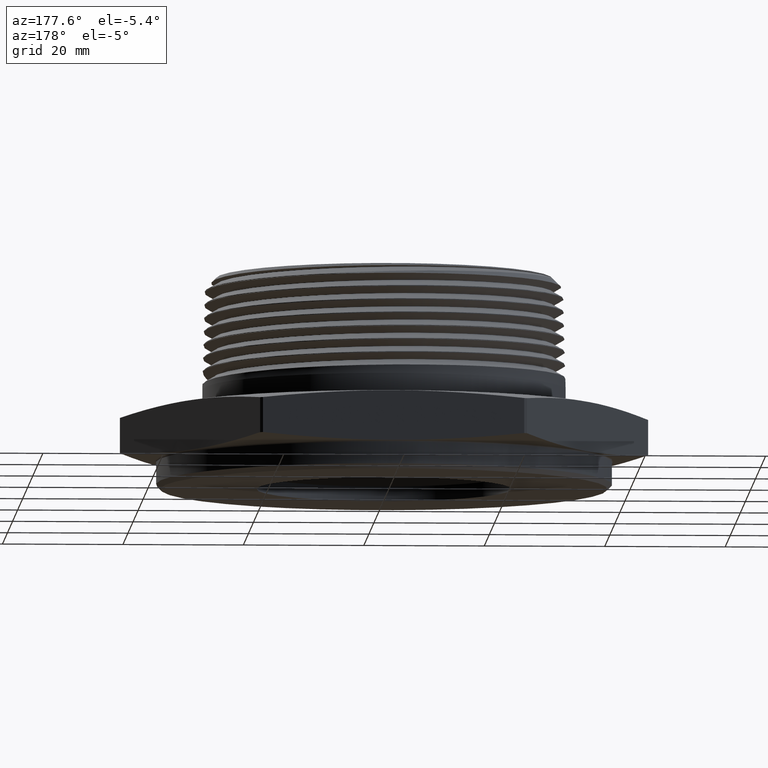
[diagram: clean part render]
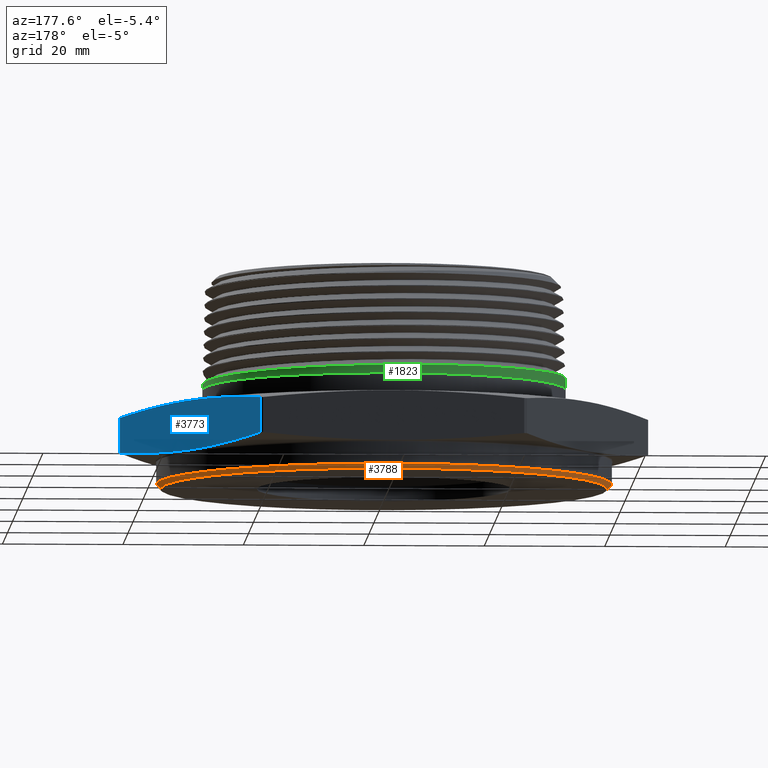
[diagram: same view with three faces highlighted in distinct colors, each labeled with its STEP entity id]
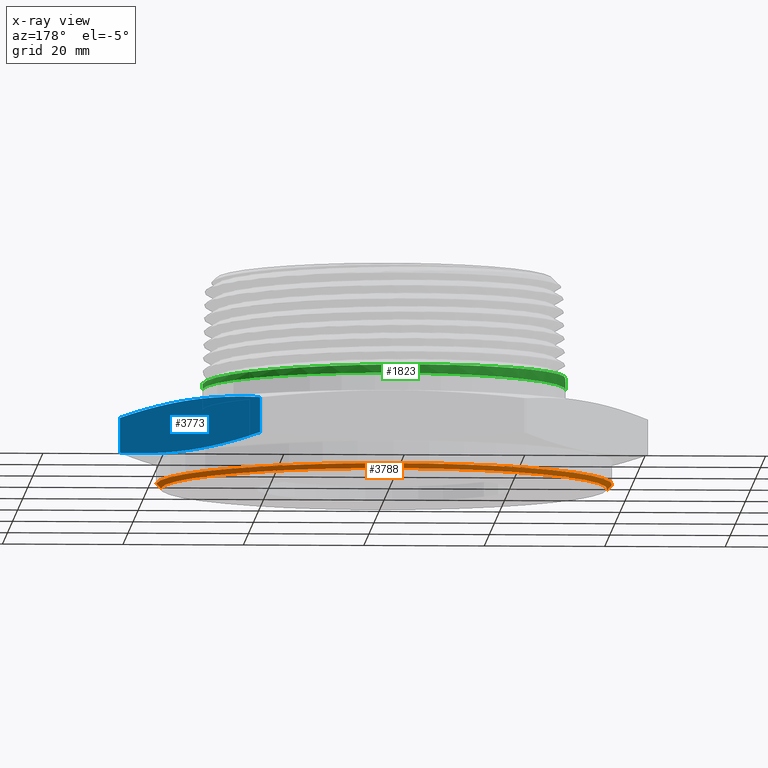
[diagram: x-ray of the same camera — body ghosted, the three highlighted faces saturated]
A machine part, auxiliary view with three faces highlighted in distinct colors.
The next image is the same camera in x-ray (body ghosted, the three faces saturated) — at least one of them is partly hidden behind the body in this view.
Their STEP definitions:

[orange] entity #3788 — the highlighted conical surface has half-angle 45 deg.
#1340 = EDGE_CURVE ( 'NONE', #1610, #1628, #1733, .T. ) ;
#1341 = EDGE_CURVE ( 'NONE', #1628, #1611, #1734, .T. ) ;
#1354 = AXIS2_PLACEMENT_3D ( 'NONE', #7612, #7611, #7610 ) ;
#1415 = AXIS2_PLACEMENT_3D ( 'NONE', #3549, #3550, #3548 ) ;
#1451 = AXIS2_PLACEMENT_3D ( 'NONE', #7502, #7503, #7504 ) ;
#1578 = ORIENTED_EDGE ( 'NONE', *, *, #4023, .F. ) ;
#1579 = ORIENTED_EDGE ( 'NONE', *, *, #4022, .T. ) ;
#1580 = ORIENTED_EDGE ( 'NONE', *, *, #1341, .F. ) ;
#1581 = ORIENTED_EDGE ( 'NONE', *, *, #1340, .F. ) ;
#1610 = VERTEX_POINT ( 'NONE', #7051 ) ;
#1611 = VERTEX_POINT ( 'NONE', #7050 ) ;
#1624 = VERTEX_POINT ( 'NONE', #7033 ) ;
#1628 = VERTEX_POINT ( 'NONE', #7029 ) ;
#1711 = EDGE_LOOP ( 'NONE', ( #1578, #1579, #1580, #1581 ) ) ;
#1733 = LINE ( 'NONE', #7617, #1736 ) ;
#1734 = CIRCLE ( 'NONE', #1354, 1.490000000000000400 ) ;
#1736 = VECTOR ( 'NONE', #7634, 39.37007874015748100 ) ;
#3548 = DIRECTION ( 'NONE',  ( 1.000000000000000000, 0.0000000000000000000, 0.0000000000000000000 ) ) ;
#3549 = CARTESIAN_POINT ( 'NONE',  ( 0.0000000000000000000, 0.0000000000000000000, -0.1799999999999999900 ) ) ;
#3550 = DIRECTION ( 'NONE',  ( 0.0000000000000000000, 0.0000000000000000000, 1.000000000000000000 ) ) ;
#3788 = ADVANCED_FACE ( 'NONE', ( #7733 ), #7742, .T. ) ;
#4022 = EDGE_CURVE ( 'NONE', #1624, #1611, #7858, .T. ) ;
#4023 = EDGE_CURVE ( 'NONE', #1624, #1610, #7856, .T. ) ;
#7029 = CARTESIAN_POINT ( 'NONE',  ( 1.490000000000000400, 0.0000000000000000000, -0.1500000000000016900 ) ) ;
#7033 = CARTESIAN_POINT ( 'NONE',  ( -1.460000000000002000, 1.806354028742347500E-016, -0.1799999999999999900 ) ) ;
#7050 = CARTESIAN_POINT ( 'NONE',  ( -1.490000000000000400, 1.824723730729556900E-016, -0.1500000000000016900 ) ) ;
#7051 = CARTESIAN_POINT ( 'NONE',  ( 1.460000000000002000, 0.0000000000000000000, -0.1799999999999999900 ) ) ;
#7498 = CARTESIAN_POINT ( 'NONE',  ( -1.460000000000002000, 1.787984326755137900E-016, -0.1799999999999999900 ) ) ;
#7500 = DIRECTION ( 'NONE',  ( -0.7071067811865507900, 8.659560562354973500E-017, 0.7071067811865443500 ) ) ;
#7502 = CARTESIAN_POINT ( 'NONE',  ( 0.0000000000000000000, 0.0000000000000000000, -0.1799999999999999900 ) ) ;
#7503 = DIRECTION ( 'NONE',  ( 0.0000000000000000000, 0.0000000000000000000, -1.000000000000000000 ) ) ;
#7504 = DIRECTION ( 'NONE',  ( -1.000000000000000000, 0.0000000000000000000, 0.0000000000000000000 ) ) ;
#7610 = DIRECTION ( 'NONE',  ( -1.000000000000000000, 0.0000000000000000000, 0.0000000000000000000 ) ) ;
#7611 = DIRECTION ( 'NONE',  ( 0.0000000000000000000, 0.0000000000000000000, 1.000000000000000000 ) ) ;
#7612 = CARTESIAN_POINT ( 'NONE',  ( 0.0000000000000000000, 0.0000000000000000000, -0.1500000000000016900 ) ) ;
#7617 = CARTESIAN_POINT ( 'NONE',  ( 1.460000000000002000, 0.0000000000000000000, -0.1799999999999999900 ) ) ;
#7634 = DIRECTION ( 'NONE',  ( 0.7071067811865507900, 0.0000000000000000000, 0.7071067811865443500 ) ) ;
#7733 = FACE_OUTER_BOUND ( 'NONE', #1711, .T. ) ;
#7742 = CONICAL_SURFACE ( 'NONE', #1415, 1.460000000000002000, 0.7853981633974528300 ) ;
#7856 = CIRCLE ( 'NONE', #1451, 1.460000000000002000 ) ;
#7858 = LINE ( 'NONE', #7498, #7859 ) ;
#7859 = VECTOR ( 'NONE', #7500, 39.37007874015748100 ) ;

[blue] entity #3773 — the highlighted planar face has unit normal (-0.866, -0.5, 0).
#1402 = AXIS2_PLACEMENT_3D ( 'NONE', #3495, #3500, #3501 ) ;
#1602 = VERTEX_POINT ( 'NONE', #7062 ) ;
#1616 = VERTEX_POINT ( 'NONE', #7045 ) ;
#1623 = VERTEX_POINT ( 'NONE', #7035 ) ;
#1626 = VERTEX_POINT ( 'NONE', #7031 ) ;
#1676 = EDGE_LOOP ( 'NONE', ( #4048, #4047, #4046, #4045 ) ) ;
#1802 = B_SPLINE_CURVE_WITH_KNOTS ( 'NONE', 3,
 ( #7441, #7436, #7445, #7446, #7447, #7448, #7449, #7450, #7451 ),
 .UNSPECIFIED., .F., .F.,
 ( 4, 2, 1, 2, 4 ),
 ( 1.901761468247925000E-006, 0.01084722133919240200, 0.02169254091691656700, 0.03253786049464072600, 0.04338318007236489200 ),
 .UNSPECIFIED. ) ;
#1803 = B_SPLINE_CURVE_WITH_KNOTS ( 'NONE', 3,
 ( #7443, #7444, #7452, #7453, #7454, #7455, #7456, #7457, #7458 ),
 .UNSPECIFIED., .F., .F.,
 ( 4, 2, 1, 2, 4 ),
 ( 1.901761468493516500E-006, 0.01084722133919265700, 0.02169254091691682300, 0.03253786049464099000, 0.04338318007236514200 ),
 .UNSPECIFIED. ) ;
#2348 = CARTESIAN_POINT ( 'NONE',  ( 1.726019191413830100, 0.01044706563229644800, -5.358555188302548100E-017 ) ) ;
#2350 = DIRECTION ( 'NONE',  ( -1.254986547952384500E-016, -0.0000000000000000000, -1.000000000000000000 ) ) ;
#2358 = CARTESIAN_POINT ( 'NONE',  ( 0.8720570199394857000, 1.489552934367705000, 5.358555188302548100E-017 ) ) ;
#2363 = DIRECTION ( 'NONE',  ( 1.254986547952384500E-016, 0.0000000000000000000, 1.000000000000000000 ) ) ;
#3494 = PLANE ( 'NONE',  #1402 ) ;
#3495 = CARTESIAN_POINT ( 'NONE',  ( 1.732050807568877400, 7.343989541934349400E-016, 0.3300000000000000200 ) ) ;
#3500 = DIRECTION ( 'NONE',  ( -0.8660254037844383700, -0.5000000000000004400, 0.0000000000000000000 ) ) ;
#3501 = DIRECTION ( 'NONE',  ( 0.5000000000000004400, -0.8660254037844383700, 0.0000000000000000000 ) ) ;
#3773 = ADVANCED_FACE ( 'NONE', ( #7707 ), #3494, .F. ) ;
#3975 = EDGE_CURVE ( 'NONE', #1602, #1616, #7806, .T. ) ;
#3980 = EDGE_CURVE ( 'NONE', #1626, #1623, #7810, .T. ) ;
#4012 = EDGE_CURVE ( 'NONE', #1623, #1602, #1802, .T. ) ;
#4013 = EDGE_CURVE ( 'NONE', #1616, #1626, #1803, .T. ) ;
#4045 = ORIENTED_EDGE ( 'NONE', *, *, #3975, .T. ) ;
#4046 = ORIENTED_EDGE ( 'NONE', *, *, #4012, .T. ) ;
#4047 = ORIENTED_EDGE ( 'NONE', *, *, #3980, .T. ) ;
#4048 = ORIENTED_EDGE ( 'NONE', *, *, #4013, .T. ) ;
#7031 = CARTESIAN_POINT ( 'NONE',  ( 0.8720570199394855900, 1.489552934367704800, 0.05017414803627065500 ) ) ;
#7035 = CARTESIAN_POINT ( 'NONE',  ( 0.8720570199394855900, 1.489552934367704800, 0.2798258519637287200 ) ) ;
#7045 = CARTESIAN_POINT ( 'NONE',  ( 1.726019191413830100, 0.01044706563229644800, 0.05017414803627098100 ) ) ;
#7062 = CARTESIAN_POINT ( 'NONE',  ( 1.726019191413829900, 0.01044706563229644500, 0.2798258519637286700 ) ) ;
#7436 = CARTESIAN_POINT ( 'NONE',  ( 0.9432205342290145300, 1.366294111973087600, 0.2947932723352763600 ) ) ;
#7441 = CARTESIAN_POINT ( 'NONE',  ( 0.8720570199394855900, 1.489552934367704800, 0.2798258519637287200 ) ) ;
#7443 = CARTESIAN_POINT ( 'NONE',  ( 1.726019191413830100, 0.01044706563229644800, 0.05017414803627098100 ) ) ;
#7444 = CARTESIAN_POINT ( 'NONE',  ( 1.654855677124301500, 0.1337058880269138500, 0.03520672766472285300 ) ) ;
#7445 = CARTESIAN_POINT ( 'NONE',  ( 1.014384048518543100, 1.243035289578469800, 0.3069262541747560500 ) ) ;
#7446 = CARTESIAN_POINT ( 'NONE',  ( 1.156711077097600100, 0.9965176447892351000, 0.3234912303191852500 ) ) ;
#7447 = CARTESIAN_POINT ( 'NONE',  ( 1.299038105676656700, 0.7500000000000002200, 0.3322576384474138500 ) ) ;
#7448 = CARTESIAN_POINT ( 'NONE',  ( 1.441365134255714800, 0.5034823552107656800, 0.3234912303191852000 ) ) ;
#7449 = CARTESIAN_POINT ( 'NONE',  ( 1.583692162834773100, 0.2569647104215312900, 0.3069262541747560500 ) ) ;
#7450 = CARTESIAN_POINT ( 'NONE',  ( 1.654855677124301900, 0.1337058880269140500, 0.2947932723352764700 ) ) ;
#7451 = CARTESIAN_POINT ( 'NONE',  ( 1.726019191413829900, 0.01044706563229644500, 0.2798258519637286700 ) ) ;
#7452 = CARTESIAN_POINT ( 'NONE',  ( 1.583692162834772700, 0.2569647104215312400, 0.02307374582524315800 ) ) ;
#7453 = CARTESIAN_POINT ( 'NONE',  ( 1.441365134255715000, 0.5034823552107657900, 0.006508769680813849900 ) ) ;
#7454 = CARTESIAN_POINT ( 'NONE',  ( 1.299038105676657600, 0.7500000000000010000, -0.002257638447414709600 ) ) ;
#7455 = CARTESIAN_POINT ( 'NONE',  ( 1.156711077097600600, 0.9965176447892358800, 0.006508769680813883800 ) ) ;
#7456 = CARTESIAN_POINT ( 'NONE',  ( 1.014384048518542900, 1.243035289578470600, 0.02307374582524324500 ) ) ;
#7457 = CARTESIAN_POINT ( 'NONE',  ( 0.9432205342290149700, 1.366294111973088000, 0.03520672766472295000 ) ) ;
#7458 = CARTESIAN_POINT ( 'NONE',  ( 0.8720570199394855900, 1.489552934367704800, 0.05017414803627065500 ) ) ;
#7707 = FACE_OUTER_BOUND ( 'NONE', #1676, .T. ) ;
#7806 = LINE ( 'NONE', #2348, #7809 ) ;
#7809 = VECTOR ( 'NONE', #2350, 39.37007874015748100 ) ;
#7810 = LINE ( 'NONE', #2358, #7817 ) ;
#7817 = VECTOR ( 'NONE', #2363, 39.37007874015748100 ) ;

[green] entity #1823 — the highlighted conical surface has half-angle 1.47 deg.
#42 = CARTESIAN_POINT ( 'NONE',  ( -1.185552364866834000, 0.07726344532175101500, 0.5471910269729639600 ) ) ;
#102 = CARTESIAN_POINT ( 'NONE',  ( -1.185529218039113300, 2.360294641209523300E-016, 0.5480930164504473900 ) ) ;
#106 = CARTESIAN_POINT ( 'NONE',  ( -1.178086352173047400, 0.1543899314581211900, 0.5462908250482293400 ) ) ;
#107 = CARTESIAN_POINT ( 'NONE',  ( -1.147583427452141300, 0.3080377417040107700, 0.5444622321591524600 ) ) ;
#108 = CARTESIAN_POINT ( 'NONE',  ( -1.125045672143207800, 0.3820973092240272900, 0.5435629159192233400 ) ) ;
#109 = CARTESIAN_POINT ( 'NONE',  ( -1.080744580254830300, 0.4892048604533527600, 0.5422099896608807400 ) ) ;
#110 = CARTESIAN_POINT ( 'NONE',  ( -1.064215578262867900, 0.5242388180217744100, 0.5417556731158967900 ) ) ;
#111 = CARTESIAN_POINT ( 'NONE',  ( -1.027550806646080600, 0.5929382687705545600, 0.5408467010763754500 ) ) ;
#112 = CARTESIAN_POINT ( 'NONE',  ( -1.007342736713500800, 0.6266727826662198400, 0.5403909640290822700 ) ) ;
#113 = CARTESIAN_POINT ( 'NONE',  ( -0.9425844693445911700, 0.7236058148130777300, 0.5390302385099567900 ) ) ;
#114 = CARTESIAN_POINT ( 'NONE',  ( -0.8935883081882314300, 0.7833226022213234400, 0.5381329808507732100 ) ) ;
#115 = CARTESIAN_POINT ( 'NONE',  ( -0.8251198639186397800, 0.8518844992812433200, 0.5370021423065880500 ) ) ;
#116 = CARTESIAN_POINT ( 'NONE',  ( -0.8110617863376246000, 0.8652899435649592500, 0.5367746569754917600 ) ) ;
#117 = CARTESIAN_POINT ( 'NONE',  ( -0.7822049237777865000, 0.8914769358367726800, 0.5363185009841777700 ) ) ;
#118 = CARTESIAN_POINT ( 'NONE',  ( -0.7673636454827672500, 0.9042924785028131400, 0.5360891993062713000 ) ) ;
#119 = CARTESIAN_POINT ( 'NONE',  ( -0.7220577596804727000, 0.9414943537273624500, 0.5354050127422425000 ) ) ;
#120 = CARTESIAN_POINT ( 'NONE',  ( -0.6908620598927930300, 0.9646163587516332100, 0.5349550689753569400 ) ) ;
#121 = CARTESIAN_POINT ( 'NONE',  ( -0.5943911507575835300, 1.029099077274786300, 0.5336007943509796200 ) ) ;
#122 = CARTESIAN_POINT ( 'NONE',  ( -0.5262592485251519300, 1.065622663532652200, 0.5327029490711467900 ) ) ;
#123 = CARTESIAN_POINT ( 'NONE',  ( -0.4362022294051099400, 1.102992859965927100, 0.5315651440979777300 ) ) ;
#124 = CARTESIAN_POINT ( 'NONE',  ( -0.4178952989146431700, 1.110064857804308600, 0.5313353360683004100 ) ) ;
#125 = CARTESIAN_POINT ( 'NONE',  ( -0.3811368055257771700, 1.123228837636530900, 0.5308783364505643700 ) ) ;
#126 = CARTESIAN_POINT ( 'NONE',  ( -0.3626626550636512500, 1.129333128187703500, 0.5306508484705121400 ) ) ;
#127 = CARTESIAN_POINT ( 'NONE',  ( -0.3069606477823299000, 1.146238862818393700, 0.5299715521159666900 ) ) ;
#128 = CARTESIAN_POINT ( 'NONE',  ( -0.2319471195450973900, 1.165034084998975800, 0.5290755634887667200 ) ) ;
#129 = CARTESIAN_POINT ( 'NONE',  ( -0.1554672780070163500, 1.176447018760471600, 0.5281689342902528000 ) ) ;
#130 = CARTESIAN_POINT ( 'NONE',  ( -0.09754960539406160000, 1.182198757297055100, 0.5274897392509085800 ) ) ;
#131 = CARTESIAN_POINT ( 'NONE',  ( -0.07815058714126087200, 1.183647183855378400, 0.5272633082092206300 ) ) ;
#132 = CARTESIAN_POINT ( 'NONE',  ( -0.03916292208709090700, 1.185589339514687900, 0.5268091500416661700 ) ) ;
#133 = CARTESIAN_POINT ( 'NONE',  ( -0.01954189397042254200, 1.186080644378378500, 0.5265810441218238300 ) ) ;
#134 = CARTESIAN_POINT ( 'NONE',  ( 0.07798128790275706000, 1.186112910210298100, 0.5254430795010511800 ) ) ;
#135 = CARTESIAN_POINT ( 'NONE',  ( 0.1549157591591912900, 1.178514770269863100, 0.5245452872261149300 ) ) ;
#136 = CARTESIAN_POINT ( 'NONE',  ( 0.2687324953125804800, 1.155973076588656900, 0.5231915886205066300 ) ) ;
#137 = CARTESIAN_POINT ( 'NONE',  ( 0.3064053281851975000, 1.146588511806850000, 0.5227364309159487900 ) ) ;
#138 = CARTESIAN_POINT ( 'NONE',  ( 0.3625030967906836000, 1.129618340833903800, 0.5220525827164275200 ) ) ;
#139 = CARTESIAN_POINT ( 'NONE',  ( 0.3811306150739197100, 1.123475660409459100, 0.5218243083834801500 ) ) ;
#140 = CARTESIAN_POINT ( 'NONE',  ( 0.4178335666572645100, 1.110360670836470200, 0.5213709071737153700 ) ) ;
#141 = CARTESIAN_POINT ( 'NONE',  ( 0.4359619717756853500, 1.103373228060993100, 0.5211451340211867800 ) ) ;
#142 = CARTESIAN_POINT ( 'NONE',  ( 0.5255068070190326300, 1.066321443092877800, 0.5200144909034599700 ) ) ;
#143 = CARTESIAN_POINT ( 'NONE',  ( 0.5936629346111292900, 1.029973314738971800, 0.5191175203917366400 ) ) ;
#144 = CARTESIAN_POINT ( 'NONE',  ( 0.6744788076253207500, 0.9760982503665716100, 0.5179845058043317500 ) ) ;
#145 = CARTESIAN_POINT ( 'NONE',  ( 0.6904210562605216400, 0.9648974840390082100, 0.5177564317700891200 ) ) ;
#146 = CARTESIAN_POINT ( 'NONE',  ( 0.7218548040415970800, 0.9416272591902065100, 0.5172987961424915200 ) ) ;
#147 = CARTESIAN_POINT ( 'NONE',  ( 0.7373033257065289000, 0.9295863388575721400, 0.5170698427939277600 ) ) ;
#148 = CARTESIAN_POINT ( 'NONE',  ( 0.7824801641867175100, 0.8925529211223508500, 0.5163883320848226000 ) ) ;
#149 = CARTESIAN_POINT ( 'NONE',  ( 0.8111929858414417300, 0.8665422282882003800, 0.5159395668998424400 ) ) ;
#150 = CARTESIAN_POINT ( 'NONE',  ( 0.8932151111282282700, 0.7846382726929782600, 0.5145874166139703400 ) ) ;
#151 = CARTESIAN_POINT ( 'NONE',  ( 0.9424482228740253000, 0.7249107285644256200, 0.5136886628153892700 ) ) ;
#152 = CARTESIAN_POINT ( 'NONE',  ( 1.007797037613783500, 0.6273235666293320900, 0.5123187687695459600 ) ) ;
#153 = CARTESIAN_POINT ( 'NONE',  ( 1.027838601989227200, 0.5939127469888652000, 0.5118621106508806100 ) ) ;
#154 = CARTESIAN_POINT ( 'NONE',  ( 1.064399995896454300, 0.5256350527655459000, 0.5109586247198987200 ) ) ;
#155 = CARTESIAN_POINT ( 'NONE',  ( 1.080946920566126600, 0.4907271711376247600, 0.5105111791534384700 ) ) ;
#156 = CARTESIAN_POINT ( 'NONE',  ( 1.110599150168445800, 0.4193850267074590300, 0.5096101134771525700 ) ) ;
#157 = CARTESIAN_POINT ( 'NONE',  ( 1.123704577839512700, 0.3829508208012258300, 0.5091563017313203200 ) ) ;
#158 = CARTESIAN_POINT ( 'NONE',  ( 1.146399631428866500, 0.3085230475455368900, 0.5082486122123171000 ) ) ;
#159 = CARTESIAN_POINT ( 'NONE',  ( 1.156000551553799900, 0.2703969431377310500, 0.5077932606791174500 ) ) ;
#160 = CARTESIAN_POINT ( 'NONE',  ( 1.178913977157351400, 0.1557369007236983300, 0.5064295606771449500 ) ) ;
#161 = CARTESIAN_POINT ( 'NONE',  ( 1.186621550452725100, 0.07834936641155458600, 0.5055268231515938100 ) ) ;
#162 = CARTESIAN_POINT ( 'NONE',  ( 1.186645000533695300, 2.325153602604478400E-015, 0.5046130164504504200 ) ) ;
#163 = CARTESIAN_POINT ( 'NONE',  ( 1.190625841662516200, 1.458096125974123800E-016, 0.3494869294921574300 ) ) ;
#164 = DIRECTION ( 'NONE',  ( 0.02565352539212722600, 3.141650775831395700E-018, -0.9996708941621514900 ) ) ;
#165 = CARTESIAN_POINT ( 'NONE',  ( -1.190625841662516200, 0.0000000000000000000, 0.3494869294921574300 ) ) ;
#167 = DIRECTION ( 'NONE',  ( -0.02565352539212722600, 0.0000000000000000000, -0.9996708941621514900 ) ) ;
#1367 = AXIS2_PLACEMENT_3D ( 'NONE', #6966, #6965, #6967 ) ;
#1419 = AXIS2_PLACEMENT_3D ( 'NONE', #3563, #3564, #3565 ) ;
#1590 = VERTEX_POINT ( 'NONE', #6903 ) ;
#1601 = VERTEX_POINT ( 'NONE', #7063 ) ;
#1636 = VERTEX_POINT ( 'NONE', #7021 ) ;
#1649 = VERTEX_POINT ( 'NONE', #7008 ) ;
#1700 = EDGE_LOOP ( 'NONE', ( #4062, #4061, #4060, #4059 ) ) ;
#1760 = FACE_OUTER_BOUND ( 'NONE', #1700, .T. ) ;
#1765 = CONICAL_SURFACE ( 'NONE', #1367, 1.190625841662516200, 0.02565634000430881300 ) ;
#1823 = ADVANCED_FACE ( 'NONE', ( #1760 ), #1765, .T. ) ;
#3563 = CARTESIAN_POINT ( 'NONE',  ( 0.0000000000000000000, 0.0000000000000000000, 0.4712952533779566900 ) ) ;
#3564 = DIRECTION ( 'NONE',  ( 0.0000000000000000000, 0.0000000000000000000, 1.000000000000000000 ) ) ;
#3565 = DIRECTION ( 'NONE',  ( -1.000000000000000000, 0.0000000000000000000, 0.0000000000000000000 ) ) ;
#3900 = EDGE_CURVE ( 'NONE', #1649, #1601, #7734, .T. ) ;
#3918 = EDGE_CURVE ( 'NONE', #1590, #1636, #7089, .T. ) ;
#3919 = EDGE_CURVE ( 'NONE', #1636, #1649, #7764, .T. ) ;
#3920 = EDGE_CURVE ( 'NONE', #1590, #1601, #7758, .T. ) ;
#4059 = ORIENTED_EDGE ( 'NONE', *, *, #3920, .F. ) ;
#4060 = ORIENTED_EDGE ( 'NONE', *, *, #3900, .T. ) ;
#4061 = ORIENTED_EDGE ( 'NONE', *, *, #3919, .T. ) ;
#4062 = ORIENTED_EDGE ( 'NONE', *, *, #3918, .T. ) ;
#6903 = CARTESIAN_POINT ( 'NONE',  ( -1.185529218039113300, 2.360294641209523300E-016, 0.5480930164504473900 ) ) ;
#6965 = DIRECTION ( 'NONE',  ( -0.0000000000000000000, -0.0000000000000000000, -1.000000000000000000 ) ) ;
#6966 = CARTESIAN_POINT ( 'NONE',  ( 0.0000000000000000000, 0.0000000000000000000, 0.3494869294921574300 ) ) ;
#6967 = DIRECTION ( 'NONE',  ( -1.000000000000000000, 0.0000000000000000000, 0.0000000000000000000 ) ) ;
#7008 = CARTESIAN_POINT ( 'NONE',  ( 1.187500000000000000, 1.454268073987482100E-016, 0.4712952533779566900 ) ) ;
#7021 = CARTESIAN_POINT ( 'NONE',  ( 1.186645000533695300, 2.325153602604478400E-015, 0.5046130164504504200 ) ) ;
#7063 = CARTESIAN_POINT ( 'NONE',  ( -1.187500000000000000, 0.0000000000000000000, 0.4712952533779566900 ) ) ;
#7089 = B_SPLINE_CURVE_WITH_KNOTS ( 'NONE', 3,
 ( #102, #42, #106, #107, #108, #109, #110, #111, #112, #113, #114, #115, #116, #117, #118, #119, #120, #121, #122, #123, #124, #125, #126, #127, #128, #129, #130, #131, #132, #133, #134, #135, #136, #137, #138, #139, #140, #141, #142, #143, #144, #145, #146, #147, #148, #149, #150, #151, #152, #153, #154, #155, #156, #157, #158, #159, #160, #161, #162 ),
 .UNSPECIFIED., .F., .F.,
 ( 4, 2, 2, 2, 2, 2, 2, 2, 2, 2, 2, 2, 1, 2, 2, 2, 2, 2, 2, 2, 2, 2, 2, 2, 2, 2, 2, 2, 2, 4 ),
 ( 1.265157035960035700, 1.271114233060983700, 1.277071430161931700, 1.280050028712405700, 1.283028627262879700, 1.288985824363827700, 1.290475123639064800, 1.291964422914301700, 1.294943021464775700, 1.300900218565723700, 1.302389517840960800, 1.303878817116197700, 1.306857415666671700, 1.309836014217145900, 1.311325313492382800, 1.312814612767619900, 1.318771809868567900, 1.321750408419041900, 1.323239707694278800, 1.324729006969515900, 1.330686204070463900, 1.332175503345701000, 1.333664802620937900, 1.336643401171411900, 1.342600598272360100, 1.345579196822834100, 1.348557795373308100, 1.351536393923782100, 1.354514992474256100, 1.360472189575204100 ),
 .UNSPECIFIED. ) ;
#7734 = CIRCLE ( 'NONE', #1419, 1.187500000000000000 ) ;
#7758 = LINE ( 'NONE', #165, #7767 ) ;
#7764 = LINE ( 'NONE', #163, #7765 ) ;
#7765 = VECTOR ( 'NONE', #164, 39.37007874015748100 ) ;
#7767 = VECTOR ( 'NONE', #167, 39.37007874015748100 ) ;